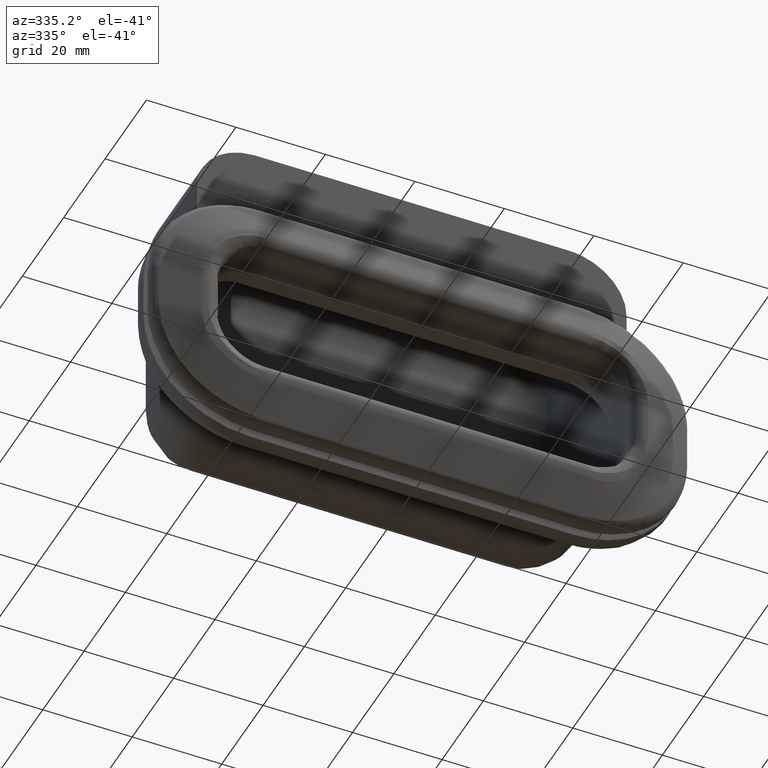
[diagram: clean part render]
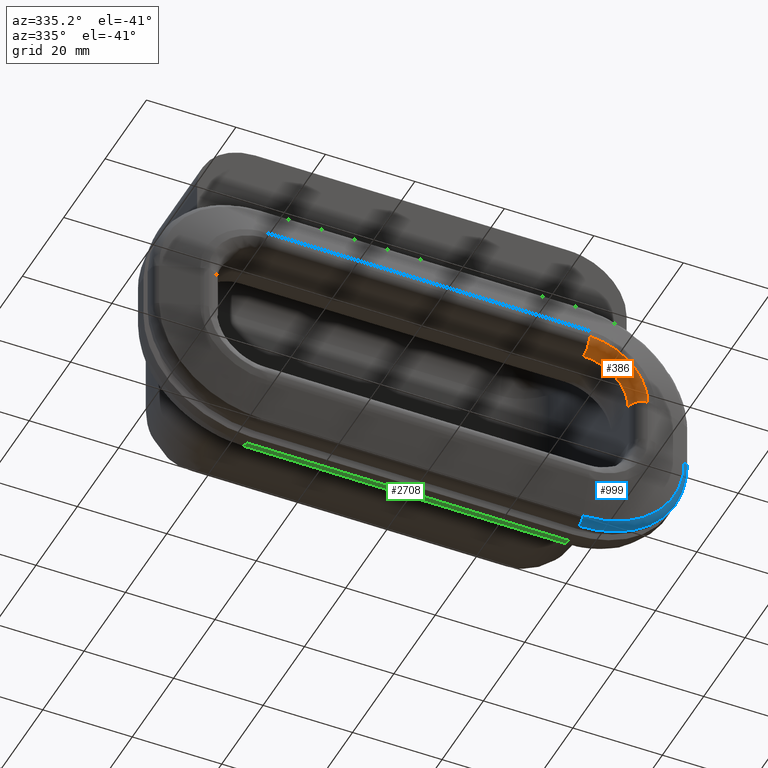
[diagram: same view with three faces highlighted in distinct colors, each labeled with its STEP entity id]
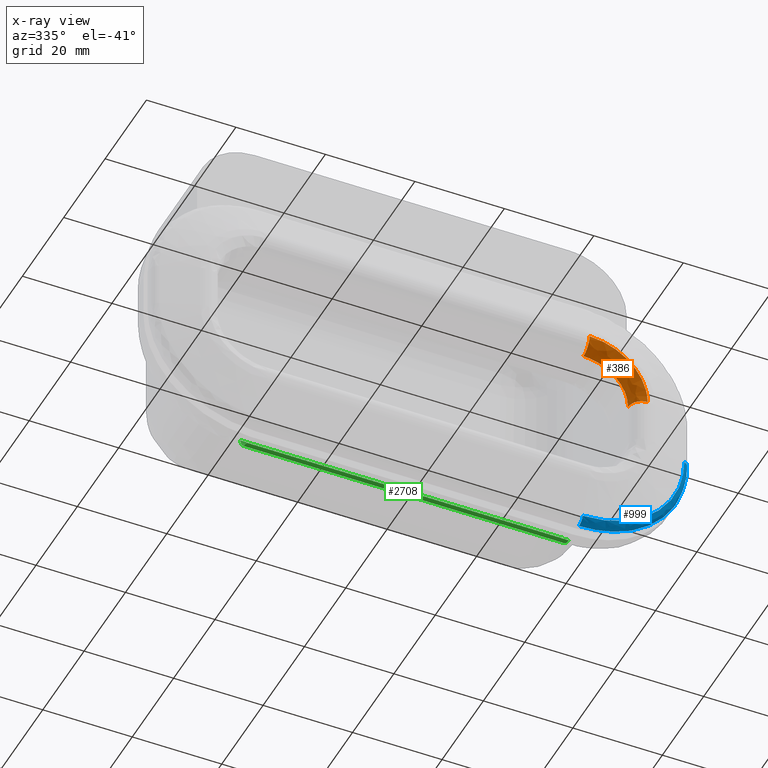
[diagram: x-ray of the same camera — body ghosted, the three highlighted faces saturated]
A machine part, auxiliary view with three faces highlighted in distinct colors.
The next image is the same camera in x-ray (body ghosted, the three faces saturated) — at least one of them is partly hidden behind the body in this view.
Their STEP definitions:

[orange] entity #386 — the highlighted face is a freeform B-spline surface patch.
#247=CARTESIAN_POINT('',(49.0,0.0,5.000000000000080));
#248=VERTEX_POINT('',#247);
#249=CARTESIAN_POINT('',(46.0,3.0,5.000000000000080));
#250=VERTEX_POINT('',#249);
#251=CARTESIAN_POINT('',(49.0,0.0,5.000000000000080));
#252=CARTESIAN_POINT('',(46.000000000000007,0.0,5.000000000000081));
#253=CARTESIAN_POINT('',(46.0,3.0,5.000000000000080));
#261=(BOUNDED_CURVE()B_SPLINE_CURVE(2,(#251,#252,#253),.UNSPECIFIED.,.F.,.U.)CURVE()GEOMETRIC_REPRESENTATION_ITEM()QUASI_UNIFORM_CURVE()RATIONAL_B_SPLINE_CURVE((1.0,0.707106781186548,1.0))REPRESENTATION_ITEM(''));
#262=EDGE_CURVE('',#248,#250,#261,.T.);
#323=CARTESIAN_POINT('',(35.304123477675034,3.208611551795360,14.983037963692384));
#324=CARTESIAN_POINT('',(46.783196650063232,3.208611551795361,15.783196948138519));
#325=CARTESIAN_POINT('',(45.983037982928117,3.208611551795360,4.304123753631894));
#326=CARTESIAN_POINT('',(35.320803609217329,-0.232612183124272,14.743744955401633));
#327=CARTESIAN_POINT('',(46.524723871058590,-0.232612183124272,15.524724161989026));
#328=CARTESIAN_POINT('',(45.743744974176280,-0.232612183124272,4.320803878559509));
#329=CARTESIAN_POINT('',(35.081510703578459,0.007261948001572,18.176638701340597));
#330=CARTESIAN_POINT('',(50.232770307009496,0.007261948001572,19.232770700439868));
#331=CARTESIAN_POINT('',(49.176638726729912,0.007261948001572,4.081511067814624));
#339=(BOUNDED_SURFACE()B_SPLINE_SURFACE(2,2,((#323,#326,#329),(#324,#327,#330),(#325,#328,#331)),.UNSPECIFIED.,.F.,.F.,.U.)B_SPLINE_SURFACE_WITH_KNOTS((3,3),(3,3),(0.0,24.071030878110651),(0.0,5.467122778953259),.UNSPECIFIED.)GEOMETRIC_REPRESENTATION_ITEM()RATIONAL_B_SPLINE_SURFACE(((0.845035787080668,0.554533511890677,0.845035840291628),(0.554533562365740,0.363898722990494,0.554533597284100),(0.845035776438479,0.554533504907008,0.845035829649439)))REPRESENTATION_ITEM('')SURFACE());
#340=CARTESIAN_POINT('',(36.0,0.0,18.0));
#341=VERTEX_POINT('',#340);
#342=CARTESIAN_POINT('',(36.0,3.0,15.0));
#343=VERTEX_POINT('',#342);
#344=CARTESIAN_POINT('',(36.0,0.0,18.0));
#345=CARTESIAN_POINT('',(36.0,0.0,14.999999999999995));
#346=CARTESIAN_POINT('',(36.0,3.0,15.0));
#354=(BOUNDED_CURVE()B_SPLINE_CURVE(2,(#344,#345,#346),.UNSPECIFIED.,.F.,.U.)CURVE()GEOMETRIC_REPRESENTATION_ITEM()QUASI_UNIFORM_CURVE()RATIONAL_B_SPLINE_CURVE((1.0,0.707106781186548,1.0))REPRESENTATION_ITEM(''));
#355=EDGE_CURVE('',#341,#343,#354,.T.);
#356=ORIENTED_EDGE('',*,*,#355,.T.);
#357=CARTESIAN_POINT('',(46.0,3.0,5.000000000000080));
#358=CARTESIAN_POINT('',(46.000000000000007,3.0,15.000000000000080));
#359=CARTESIAN_POINT('',(36.0,3.0,15.000000000000080));
#367=(BOUNDED_CURVE()B_SPLINE_CURVE(2,(#357,#358,#359),.UNSPECIFIED.,.F.,.U.)CURVE()GEOMETRIC_REPRESENTATION_ITEM()QUASI_UNIFORM_CURVE()RATIONAL_B_SPLINE_CURVE((1.0,0.707106781186548,1.0))REPRESENTATION_ITEM(''));
#368=EDGE_CURVE('',#250,#343,#367,.T.);
#369=ORIENTED_EDGE('',*,*,#368,.F.);
#370=ORIENTED_EDGE('',*,*,#262,.F.);
#371=CARTESIAN_POINT('',(36.0,0.0,18.000000000000082));
#372=CARTESIAN_POINT('',(48.999999999999986,0.0,18.000000000000078));
#373=CARTESIAN_POINT('',(48.999999999999993,0.0,5.000000000000080));
#381=(BOUNDED_CURVE()B_SPLINE_CURVE(2,(#371,#372,#373),.UNSPECIFIED.,.F.,.U.)CURVE()GEOMETRIC_REPRESENTATION_ITEM()QUASI_UNIFORM_CURVE()RATIONAL_B_SPLINE_CURVE((1.0,0.707106781186547,1.0))REPRESENTATION_ITEM(''));
#382=EDGE_CURVE('',#341,#248,#381,.T.);
#383=ORIENTED_EDGE('',*,*,#382,.F.);
#384=EDGE_LOOP('',(#356,#369,#370,#383));
#385=FACE_OUTER_BOUND('',#384,.T.);
#386=ADVANCED_FACE('',(#385),#339,.T.);

[blue] entity #999 — the highlighted face is a freeform B-spline surface patch.
#920=CARTESIAN_POINT('',(34.326839718101667,5.239970558565552,-28.938422807671557));
#921=CARTESIAN_POINT('',(61.852634297797266,5.239970558565552,-30.862320074774690));
#922=CARTESIAN_POINT('',(59.939047865979084,5.239970558565551,-3.335806766585285));
#923=CARTESIAN_POINT('',(34.320706475526492,3.681014890664024,-29.026173010407682));
#924=CARTESIAN_POINT('',(61.947401355724267,3.681014890664022,-30.957122637500792));
#925=CARTESIAN_POINT('',(60.026800359968639,3.681014890664021,-3.329706394192436));
#926=CARTESIAN_POINT('',(34.424668165474039,3.217465942095452,-27.538760885765946));
#927=CARTESIAN_POINT('',(60.341049842200604,3.217465942095452,-29.350169298943442));
#928=CARTESIAN_POINT('',(58.539349397375346,3.217465942095450,-3.433110917247909));
#936=(BOUNDED_SURFACE()B_SPLINE_SURFACE(2,2,((#920,#923,#926),(#921,#924,#927),(#922,#925,#928)),.UNSPECIFIED.,.F.,.F.,.U.)B_SPLINE_SURFACE_WITH_KNOTS((3,3),(3,3),(0.0,43.731100827238528),(0.0,2.753041870623970),.UNSPECIFIED.)GEOMETRIC_REPRESENTATION_ITEM()RATIONAL_B_SPLINE_SURFACE(((0.844242676183667,0.664777659502380,0.842523340644200),(0.555553717032984,0.437456800225399,0.554422308639729),(0.848945088232189,0.668480455586751,0.847216176033801)))REPRESENTATION_ITEM('')SURFACE());
#937=CARTESIAN_POINT('',(60.0,5.127299510607200,-4.999999999999821));
#938=VERTEX_POINT('',#937);
#939=CARTESIAN_POINT('',(58.700604291139499,3.254026004886200,-4.999999999999821));
#940=VERTEX_POINT('',#939);
#941=CARTESIAN_POINT('',(60.000000000000007,5.127299510607200,-4.999999999999821));
#942=CARTESIAN_POINT('',(60.000000000000007,3.739999999999736,-4.999999999999822));
#943=CARTESIAN_POINT('',(58.700604291139499,3.254026004886200,-4.999999999999821));
#951=(BOUNDED_CURVE()B_SPLINE_CURVE(2,(#941,#942,#943),.UNSPECIFIED.,.F.,.U.)CURVE()GEOMETRIC_REPRESENTATION_ITEM()QUASI_UNIFORM_CURVE()RATIONAL_B_SPLINE_CURVE((1.0,0.821675771083028,1.0))REPRESENTATION_ITEM(''));
#952=EDGE_CURVE('',#938,#940,#951,.T.);
#953=ORIENTED_EDGE('',*,*,#952,.T.);
#954=CARTESIAN_POINT('',(36.0,3.254026004886200,-27.700604291139449));
#955=VERTEX_POINT('',#954);
#956=CARTESIAN_POINT('',(36.0,3.254026004886210,-27.700604291139520));
#957=CARTESIAN_POINT('',(58.700604291139690,3.254026004886211,-27.700604291139520));
#958=CARTESIAN_POINT('',(58.700604291139499,3.254026004886200,-4.999999999999821));
#966=(BOUNDED_CURVE()B_SPLINE_CURVE(2,(#956,#957,#958),.UNSPECIFIED.,.F.,.U.)CURVE()GEOMETRIC_REPRESENTATION_ITEM()QUASI_UNIFORM_CURVE()RATIONAL_B_SPLINE_CURVE((1.0,0.707106781186547,1.0))REPRESENTATION_ITEM(''));
#967=EDGE_CURVE('',#955,#940,#966,.T.);
#968=ORIENTED_EDGE('',*,*,#967,.F.);
#969=CARTESIAN_POINT('',(36.0,5.127299510607200,-29.0));
#970=VERTEX_POINT('',#969);
#971=CARTESIAN_POINT('',(36.0,3.254026004886122,-27.700604291139481));
#972=CARTESIAN_POINT('',(36.0,3.739999999999788,-28.999999999999993));
#973=CARTESIAN_POINT('',(36.0,5.127299510607310,-29.0));
#981=(BOUNDED_CURVE()B_SPLINE_CURVE(2,(#971,#972,#973),.UNSPECIFIED.,.F.,.U.)CURVE()GEOMETRIC_REPRESENTATION_ITEM()QUASI_UNIFORM_CURVE()RATIONAL_B_SPLINE_CURVE((1.0,0.821675771083017,1.0))REPRESENTATION_ITEM(''));
#982=EDGE_CURVE('',#955,#970,#981,.T.);
#983=ORIENTED_EDGE('',*,*,#982,.T.);
#984=CARTESIAN_POINT('',(60.0,5.127299510607310,-4.999999999999821));
#985=CARTESIAN_POINT('',(60.0,5.127299510607310,-28.999999999999815));
#986=CARTESIAN_POINT('',(36.0,5.127299510607200,-29.0));
#994=(BOUNDED_CURVE()B_SPLINE_CURVE(2,(#984,#985,#986),.UNSPECIFIED.,.F.,.U.)CURVE()GEOMETRIC_REPRESENTATION_ITEM()QUASI_UNIFORM_CURVE()RATIONAL_B_SPLINE_CURVE((1.0,0.707106781186548,1.0))REPRESENTATION_ITEM(''));
#995=EDGE_CURVE('',#938,#970,#994,.T.);
#996=ORIENTED_EDGE('',*,*,#995,.F.);
#997=EDGE_LOOP('',(#953,#968,#983,#996));
#998=FACE_OUTER_BOUND('',#997,.T.);
#999=ADVANCED_FACE('',(#998),#936,.T.);

[green] entity #2708 — the highlighted face is a freeform B-spline surface patch.
#2531=CARTESIAN_POINT('',(36.0,10.0,-29.0));
#2532=VERTEX_POINT('',#2531);
#2533=CARTESIAN_POINT('',(36.0,13.0,-26.0));
#2534=VERTEX_POINT('',#2533);
#2535=CARTESIAN_POINT('',(36.0,10.0,-29.0));
#2536=CARTESIAN_POINT('',(36.0,13.000000000000004,-29.0));
#2537=CARTESIAN_POINT('',(36.0,13.0,-26.0));
#2545=(BOUNDED_CURVE()B_SPLINE_CURVE(2,(#2535,#2536,#2537),.UNSPECIFIED.,.F.,.U.)CURVE()GEOMETRIC_REPRESENTATION_ITEM()QUASI_UNIFORM_CURVE()RATIONAL_B_SPLINE_CURVE((1.0,0.707106781186548,1.0))REPRESENTATION_ITEM(''));
#2546=EDGE_CURVE('',#2532,#2534,#2545,.T.);
#2664=CARTESIAN_POINT('',(-37.800000000000011,12.998971974926670,-25.921469155076380));
#2665=CARTESIAN_POINT('',(37.845000000000013,12.998971974926670,-25.921469155076380));
#2666=CARTESIAN_POINT('',(-37.800000000000011,13.084673353587977,-29.194272765782355));
#2667=CARTESIAN_POINT('',(37.845000000000006,13.084673353587977,-29.194272765782355));
#2668=CARTESIAN_POINT('',(-37.800000000000011,9.816854381395435,-28.994404395265601));
#2669=CARTESIAN_POINT('',(37.845000000000013,9.816854381395435,-28.994404395265601));
#2677=(BOUNDED_SURFACE()B_SPLINE_SURFACE(1,2,((#2664,#2666,#2668),(#2665,#2667,#2669)),.UNSPECIFIED.,.F.,.F.,.U.)B_SPLINE_SURFACE_WITH_KNOTS((2,2),(3,3),(0.0,75.645000000000024),(0.0,5.280126370701991),.UNSPECIFIED.)GEOMETRIC_REPRESENTATION_ITEM()RATIONAL_B_SPLINE_SURFACE(((1.0,0.675590207615660,1.0),(1.0,0.675590207615660,1.0)))REPRESENTATION_ITEM('')SURFACE());
#2678=CARTESIAN_POINT('',(-36.0,10.0,-29.0));
#2679=VERTEX_POINT('',#2678);
#2680=CARTESIAN_POINT('',(-36.0,13.0,-26.0));
#2681=VERTEX_POINT('',#2680);
#2682=CARTESIAN_POINT('',(-36.0,10.0,-29.0));
#2683=CARTESIAN_POINT('',(-36.0,13.000000000000004,-29.0));
#2684=CARTESIAN_POINT('',(-36.0,13.0,-26.0));
#2692=(BOUNDED_CURVE()B_SPLINE_CURVE(2,(#2682,#2683,#2684),.UNSPECIFIED.,.F.,.U.)CURVE()GEOMETRIC_REPRESENTATION_ITEM()QUASI_UNIFORM_CURVE()RATIONAL_B_SPLINE_CURVE((1.0,0.707106781186548,1.0))REPRESENTATION_ITEM(''));
#2693=EDGE_CURVE('',#2679,#2681,#2692,.T.);
#2694=ORIENTED_EDGE('',*,*,#2693,.T.);
#2695=CARTESIAN_POINT('',(36.0,13.0,-26.0));
#2696=CARTESIAN_POINT('',(-36.0,13.0,-26.0));
#2697=QUASI_UNIFORM_CURVE('',1,(#2695,#2696),.UNSPECIFIED.,.F.,.U.);
#2698=EDGE_CURVE('',#2534,#2681,#2697,.T.);
#2699=ORIENTED_EDGE('',*,*,#2698,.F.);
#2700=ORIENTED_EDGE('',*,*,#2546,.F.);
#2701=CARTESIAN_POINT('',(-36.0,10.0,-29.0));
#2702=CARTESIAN_POINT('',(36.0,10.0,-29.0));
#2703=QUASI_UNIFORM_CURVE('',1,(#2701,#2702),.UNSPECIFIED.,.F.,.U.);
#2704=EDGE_CURVE('',#2679,#2532,#2703,.T.);
#2705=ORIENTED_EDGE('',*,*,#2704,.F.);
#2706=EDGE_LOOP('',(#2694,#2699,#2700,#2705));
#2707=FACE_OUTER_BOUND('',#2706,.T.);
#2708=ADVANCED_FACE('',(#2707),#2677,.T.);